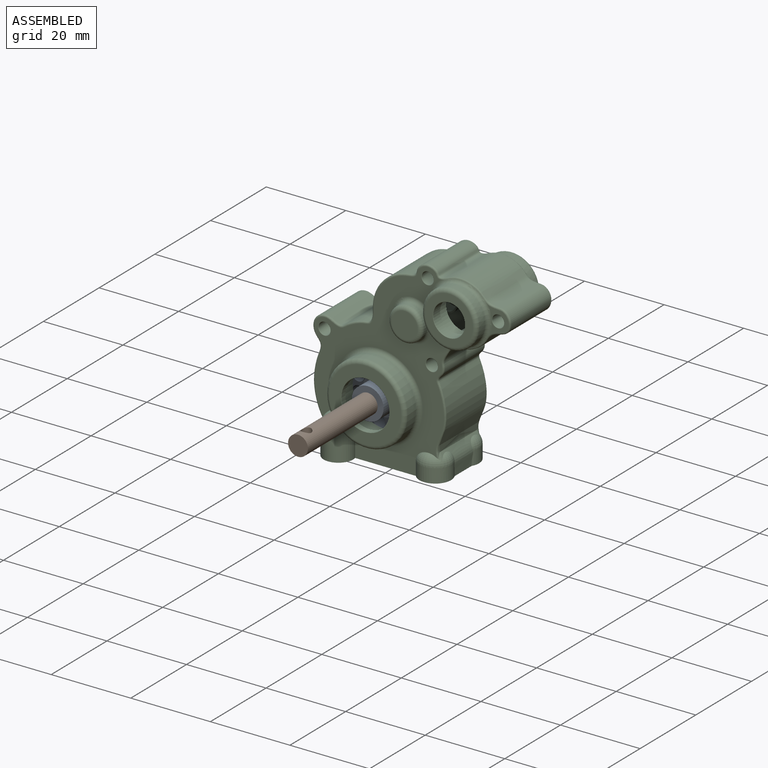
[diagram: assembled view]
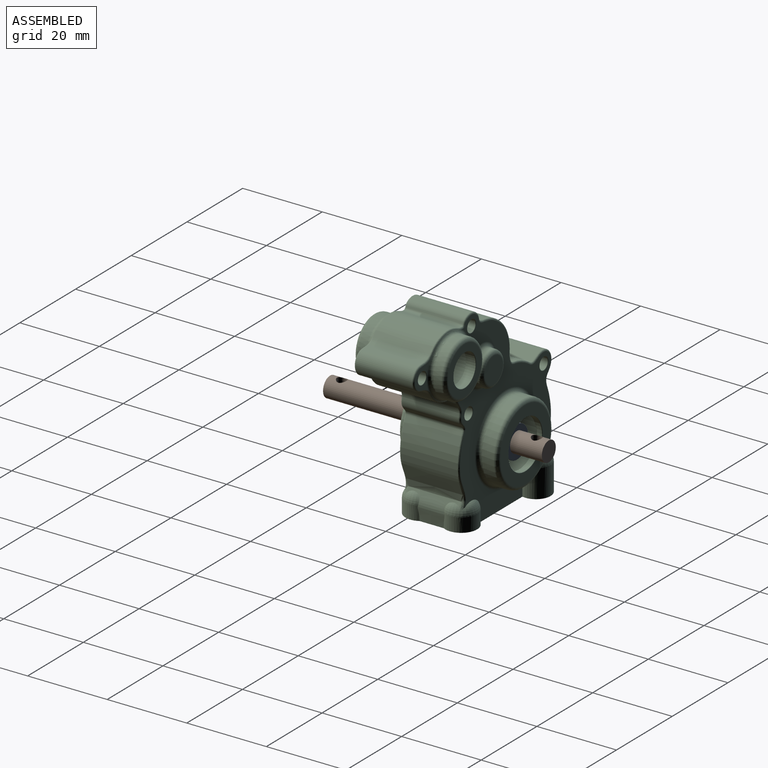
[diagram: assembled view, second angle]
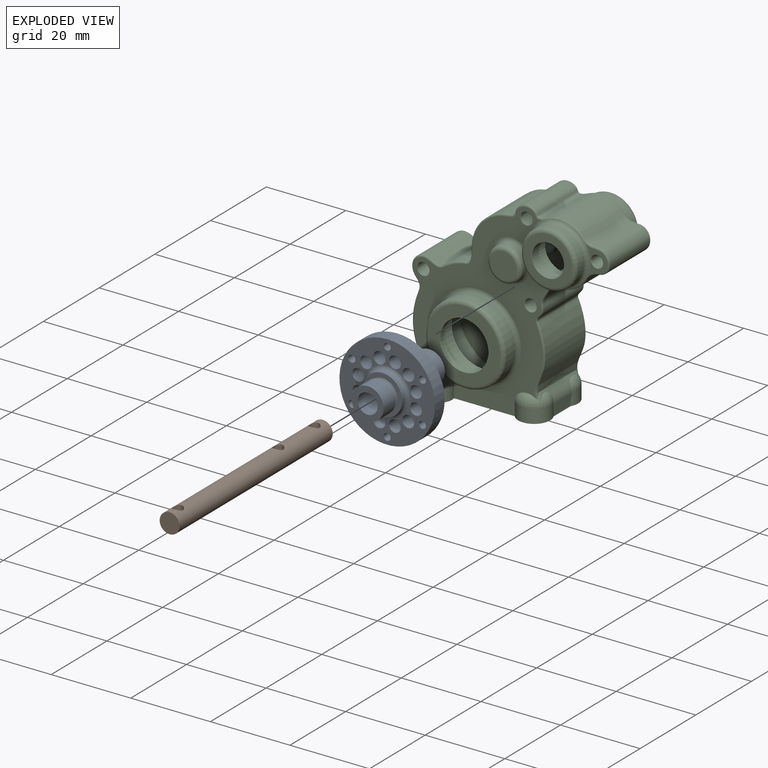
[diagram: exploded view]
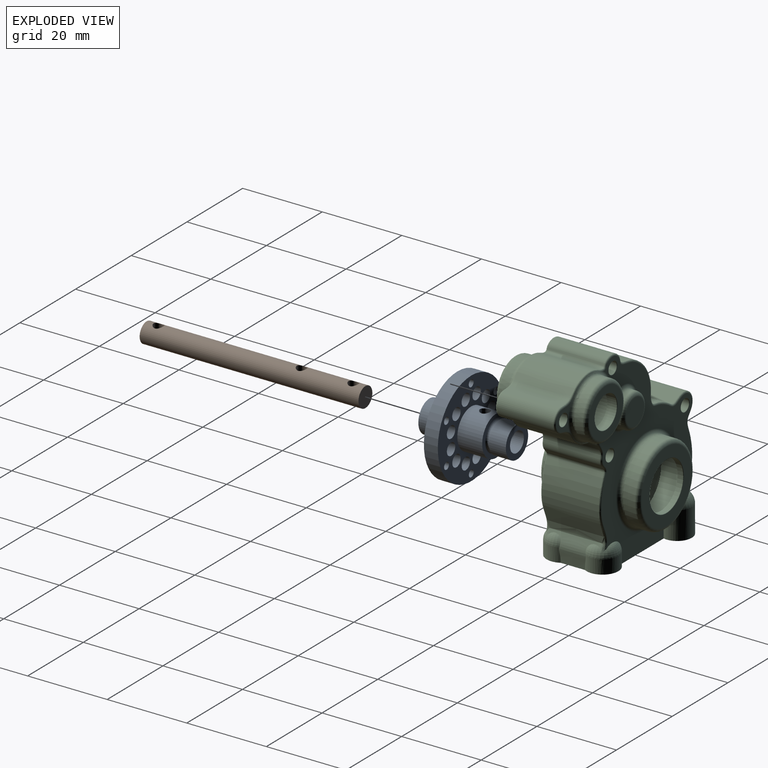
[diagram: exploded view, second angle]
ASSEMBLY  parts=3 mates=4
PART A: 35 faces, bbox 22x24x24 mm
  f0: cylinder r=5mm len=10mm, axis (-1,0,0), area 186.5mm2, adj f8,f9,f15,f16
  f1: cylinder r=2.5mm len=22mm, axis (-1,0,0), area 335.4mm2, adj f12,f13,f15,f16
  f2: torus R=4mm, axis (-1,0,0), area 36.3mm2, adj f3,f14
  f3: plane 10x10mm, normal (1,0,0), area 28.3mm2, adj f2,f4
  f4: cylinder r=5mm len=10mm, axis (-1,0,0), area 23.6mm2, adj f3,f5
  f5: torus R=6mm, axis (-1,0,0), area 52.9mm2, adj f4,f6
  f6: plane 24x24mm, normal (1,0,0), area 240mm2, adj f5,f7,f17,f18,f19,f20,f21,f22
  f7: cylinder r=12mm len=24mm, axis (-1,0,0), area 263.9mm2, adj f6,f8
  f8: plane 24x24mm, normal (-1,0,0), area 274.6mm2, adj f0,f7,f17,f18,f19,f20,f21,f22
  f9: plane 10x10mm, normal (-1,0,0), area 28.3mm2, adj f0,f10
  f10: torus R=4mm, axis (-1,0,0), area 36.3mm2, adj f9,f11
  f11: cylinder r=4mm len=8mm, axis (-1,0,0), area 106.8mm2, adj f10,f12
  f12: plane 8x8mm, normal (-1,0,0), area 30.6mm2, adj f1,f11
  f13: plane 8x8mm, normal (1,0,0), area 30.6mm2, adj f1,f14
  f14: cylinder r=4mm len=8mm, axis (-1,0,0), area 106.8mm2, adj f2,f13
  f15: cylinder r=1.25mm len=2.84mm, axis (0,0,1), area 20.3mm2, adj f0,f1
  f16: cylinder r=1.25mm len=2.84mm, axis (0,0,1), area 20.3mm2, adj f0,f1
  f17: cylinder r=0.88mm len=3.5mm, axis (-1,0,0), area 19.2mm2, adj f6,f8
  f18: cylinder r=0.88mm len=3.5mm, axis (-1,0,0), area 19.2mm2, adj f6,f8
  f19: cylinder r=0.88mm len=3.5mm, axis (-1,0,0), area 19.2mm2, adj f6,f8
  f20: cylinder r=0.88mm len=3.5mm, axis (-1,0,0), area 19.2mm2, adj f6,f8
  f21: cylinder r=0.88mm len=3.5mm, axis (-1,0,0), area 19.2mm2, adj f6,f8
  f22: cylinder r=0.88mm len=3.5mm, axis (-1,0,0), area 19.2mm2, adj f6,f8
  f23: cylinder r=1.5mm len=3.5mm, axis (1,0,0), area 33mm2, adj f6,f8
  f24: cylinder r=1.5mm len=3.5mm, axis (1,0,0), area 33mm2, adj f6,f8
  f25: cylinder r=1.5mm len=3.5mm, axis (1,0,0), area 33mm2, adj f6,f8
  f26: cylinder r=1.5mm len=3.5mm, axis (1,0,0), area 33mm2, adj f6,f8
  f27: cylinder r=1.5mm len=3.5mm, axis (1,0,0), area 33mm2, adj f6,f8
  f28: cylinder r=1.5mm len=3.5mm, axis (1,0,0), area 33mm2, adj f6,f8
  f29: cylinder r=1.5mm len=3.5mm, axis (1,0,0), area 33mm2, adj f6,f8
  f30: cylinder r=1.5mm len=3.5mm, axis (1,0,0), area 33mm2, adj f6,f8
  f31: cylinder r=1.5mm len=3.5mm, axis (1,0,0), area 33mm2, adj f6,f8
  f32: cylinder r=1.5mm len=3.5mm, axis (1,0,0), area 33mm2, adj f6,f8
  f33: cylinder r=1.5mm len=3.5mm, axis (1,0,0), area 33mm2, adj f6,f8
  f34: cylinder r=1.5mm len=3.5mm, axis (1,0,0), area 33mm2, adj f6,f8
PART B: 6 faces, bbox 55x5x5 mm
  f0: cylinder r=2.5mm len=55mm, axis (-1,0,0), area 833.5mm2, adj f1,f2,f3,f4,f5
  f1: plane 5x5mm, normal (1,0,0), area 19.6mm2, adj f0
  f2: plane 5x5mm, normal (-1,0,0), area 19.6mm2, adj f0
  f3: cylinder r=1.25mm len=5mm, axis (0,0,-1), area 36.7mm2, adj f0
  f4: cylinder r=1.25mm len=5mm, axis (0,0,-1), area 36.7mm2, adj f0
  f5: cylinder r=1.25mm len=5mm, axis (0,0,-1), area 36.7mm2, adj f0
PART C: 158 faces, bbox 25x57.6x49.9 mm
  f0: cylinder r=2.5mm len=5mm, axis (-1,0,0), area 48.7mm2, adj f79,f81
  f1: cylinder r=2.88mm len=5.76mm, axis (-1,0,0), area 18.1mm2, adj f62,f79
  f2: cylinder r=5.05mm len=10.1mm, axis (-1,0,0), area 114.2mm2, adj f62,f78
  f3: cylinder r=8.05mm len=16.1mm, axis (-1,0,0), area 278.2mm2, adj f61,f77
  f4: torus R=9mm, axis (1,0,0), area 95.1mm2, adj f11,f49
  f5: torus R=3.25mm, axis (1,0,0), area 38.4mm2, adj f6,f76
  f6: cylinder r=4.25mm len=8.5mm, axis (1,0,0), area 26.7mm2, adj f5,f7
  f7: torus R=5.25mm, axis (-1,0,0), area 44.9mm2, adj f6,f36,f48
  f8: cylinder r=7mm len=14mm, axis (1,0,0), area 88mm2, adj f9,f36
  f9: torus R=6mm, axis (1,0,0), area 65.5mm2, adj f8,f50
  f10: torus R=11mm, axis (1,0,0), area 95.9mm2, adj f11,f12,f13,f48
  f11: cylinder r=10mm len=20mm, axis (-1,0,0), area 183mm2, adj f4,f10,f13
  f12: cylinder r=3.7mm len=7.4mm, axis (0,1,0), area 99.8mm2, adj f10,f13,f48,f60,f66,f71,f80
  f13: torus R=0.7mm, axis (0,1,0), area 37.6mm2, adj f10,f11,f12,f48,f70
  f14: cylinder r=4mm len=7.14mm, axis (0,1,0), area 40.4mm2, adj f15,f48,f60,f65,f68
  f15: torus R=1mm, axis (0,1,0), area 27.6mm2, adj f14,f48,f65,f67,f68,f69
  f16: cylinder r=1.15mm len=4mm, axis (0,-1,0), area 28.9mm2, adj f60,f64
  f17: cylinder r=1.15mm len=6.5mm, axis (0,-1,0), area 47mm2, adj f60,f63
  f18: cylinder r=3mm len=3.7mm, axis (1,0,0), area 14.8mm2, adj f19,f28,f33,f57
  f19: cylinder r=8.2mm len=11.47mm, axis (-1,0,0), area 65.8mm2, adj f18,f20,f31,f57
  f20: cylinder r=3mm len=3.7mm, axis (1,0,0), area 17.9mm2, adj f19,f21,f53,f57
  f21: cylinder r=14.75mm len=29.5mm, axis (-1,0,0), area 299.8mm2, adj f20,f30,f53,f54,f57,f61,f62
  f22: cylinder r=7.5mm len=15mm, axis (-1,0,0), area 51.2mm2, adj f57,f58,f59,f104
  f23: cylinder r=15.67mm len=30.79mm, axis (-1,0,0), area 69.7mm2, adj f24,f57,f60,f105
  f24: cylinder r=2mm len=2.42mm, axis (-1,0,0), area 5.3mm2, adj f23,f25,f57,f106
  f25: cylinder r=9.11mm len=12.5mm, axis (-1,0,0), area 31.7mm2, adj f24,f57,f58,f107
  f26: cylinder r=2mm len=1.6mm, axis (-1,0,0), area 0.9mm2, adj f27,f46,f57,f108
  f27: cylinder r=15.67mm len=24.55mm, axis (-1,0,0), area 49.5mm2, adj f26,f57,f60,f109
  f28: cylinder r=6.22mm len=12.45mm, axis (-1,0,0), area 97.5mm2, adj f18,f29,f34,f57
  f29: cylinder r=3mm len=3.7mm, axis (-1,0,0), area 14.8mm2, adj f28,f32,f55,f57
  f30: cylinder r=3mm len=4.25mm, axis (-1,0,0), area 17.9mm2, adj f21,f54,f55,f57
  f31: torus R=8.1mm, axis (1,0,0), area 2.8mm2, adj f19,f33,f53,f62
  f32: torus R=3.1mm, axis (1,0,0), area 0.6mm2, adj f29,f34,f52,f62
  f33: torus R=3.1mm, axis (1,0,0), area 0.6mm2, adj f18,f31,f34,f62
  f34: torus R=6.12mm, axis (1,0,0), area 4.1mm2, adj f28,f32,f33,f62
  f35: cylinder r=1.5mm len=14.8mm, axis (-1,0,0), area 139.5mm2, adj f37,f51,f118,f129
  f36: torus R=8mm, axis (1,0,0), area 65mm2, adj f7,f8,f48,f51,f72,f74,f75
  f37: torus R=1.6mm, axis (-1,0,0), area 1.4mm2, adj f35,f51,f75
  f38: cylinder r=4mm len=8mm, axis (-1,0,0), area 60.3mm2, adj f39,f78
  f39: torus R=4.1mm, axis (1,0,0), area 4mm2, adj f38,f50
  f40: cylinder r=1.5mm len=14.8mm, axis (-1,0,0), area 139.5mm2, adj f41,f121
  f41: torus R=1.6mm, axis (-1,0,0), area 1.5mm2, adj f40,f48
  f42: cylinder r=6.05mm len=12.1mm, axis (-1,0,0), area 53.1mm2, adj f43,f77
  f43: torus R=6.15mm, axis (1,0,0), area 6mm2, adj f42,f49
  f44: cylinder r=1.5mm len=14.8mm, axis (-1,0,0), area 139.5mm2, adj f45,f124
  f45: torus R=1.6mm, axis (-1,0,0), area 1.5mm2, adj f44,f48
  f46: cylinder r=1.5mm len=14.8mm, axis (-1,0,0), area 126.1mm2, adj f26,f47,f56,f57,f108,f125,f134,f135
  f47: torus R=1.6mm, axis (-1,0,0), area 1.5mm2, adj f46,f48
  f48: plane 48.36x34.86mm, normal (-1,0,0), area 552.2mm2, adj f7,f10,f12,f13,f14,f15,f36,f41
  f49: plane 18x18mm, normal (-1,0,0), area 135.6mm2, adj f4,f43
  f50: plane 12x12mm, normal (-1,0,0), area 60.3mm2, adj f9,f39
  f51: bspline ~0.44x0.14mm, area 0.1mm2, adj f35,f36,f37
  f52: torus R=8.1mm, axis (1,0,0), area 0.8mm2, adj f32,f54,f55,f62
  f53: torus R=3.1mm, axis (1,0,0), area 0.7mm2, adj f20,f21,f31,f62
  f54: torus R=3.1mm, axis (1,0,0), area 0.7mm2, adj f21,f30,f52,f62
  f55: cylinder r=8.2mm len=3.71mm, axis (-1,0,0), area 18.2mm2, adj f29,f30,f52,f57
  f56: cylinder r=9.11mm len=3.73mm, axis (-1,0,0), area 7.9mm2, adj f46,f57,f59,f134
  f57: plane 47.48x43.44mm, normal (1,0,0), area 146.1mm2, adj f18,f19,f20,f21,f22,f23,f24,f25
  f58: cylinder r=2mm len=2.36mm, axis (-1,0,0), area 4.2mm2, adj f22,f25,f57,f136
  f59: cylinder r=2mm len=2.18mm, axis (-1,0,0), area 4.2mm2, adj f22,f56,f57,f137
  f60: plane 29.71x24.15mm, normal (0,1,0), area 460.8mm2, adj f12,f14,f16,f17,f23,f27,f48,f57
  f61: plane 29.5x29.5mm, normal (1,0,0), area 479.9mm2, adj f3,f21
  f62: plane 27.84x21.44mm, normal (1,0,0), area 215.2mm2, adj f1,f2,f21,f31,f32,f33,f34,f52
  f63: plane 2.3x2.3mm, normal (0,1,0), area 4.2mm2, adj f17
  f64: plane 2.3x2.3mm, normal (0,1,0), area 4.2mm2, adj f16
  f65: bspline ~9.9x8.95mm, area 24.8mm2, adj f14,f15,f60,f69,f80,f142
  f66: plane 12.51x4.29mm, normal (0,0,-1), area 53.6mm2, adj f12,f60,f80,f94,f156
  f67: bspline ~26.81x4.36mm, area 17.7mm2, adj f15,f48,f69,f74,f80
  f68: bspline ~2.15x1.11mm, area 0.5mm2, adj f14,f15
  f69: bspline ~4.25x2.99mm, area 1.1mm2, adj f15,f65,f67,f80
  f70: plane 1.4x1.4mm, normal (0,-1,0), area 1.5mm2, adj f13
  f71: bspline ~44.75x32.31mm, area 43.4mm2, adj f12,f48,f72,f80
  f72: bspline ~12x4.1mm, area 6.8mm2, adj f36,f71,f73,f80
  f73: bspline ~7.29x5.68mm, area 8.6mm2, adj f72,f74,f75,f80
  f74: bspline ~10.42x5.9mm, area 5.8mm2, adj f36,f67,f73,f80
  f75: plane 6.6x5.25mm, normal (-1,0,0), area 13.2mm2, adj f36,f37,f73
  f76: plane 6.5x6.5mm, normal (-1,0,0), area 33.2mm2, adj f5
  f77: plane 16.1x16.1mm, normal (1,0,0), area 88.6mm2, adj f3,f42
  f78: plane 10.1x10.1mm, normal (1,0,0), area 29.9mm2, adj f2,f38
  f79: plane 5.76x5.76mm, normal (1,0,0), area 6.4mm2, adj f0,f1
  f80: bspline ~57.13x49.94mm, area 971.3mm2, adj f12,f65,f66,f67,f69,f71,f72,f73
  f81: plane 5x5mm, normal (1,0,0), area 19.6mm2, adj f0
  f82: cylinder r=2.5mm len=5mm, axis (1,0,0), area 48.7mm2, adj f155,f157
  f83: cylinder r=2.88mm len=5.76mm, axis (1,0,0), area 18.1mm2, adj f139,f155
  f84: cylinder r=5.05mm len=10.1mm, axis (1,0,0), area 114.2mm2, adj f139,f154
  f85: cylinder r=8.05mm len=16.1mm, axis (1,0,0), area 278.2mm2, adj f138,f153
  f86: torus R=9mm, axis (-1,0,0), area 95.1mm2, adj f93,f127
  f87: torus R=3.25mm, axis (-1,0,0), area 38.4mm2, adj f88,f152
  f88: cylinder r=4.25mm len=8.5mm, axis (-1,0,0), area 26.7mm2, adj f87,f89
  f89: torus R=5.25mm, axis (1,0,0), area 44.9mm2, adj f88,f117,f126
  f90: cylinder r=7mm len=14mm, axis (-1,0,0), area 88mm2, adj f91,f117
  f91: torus R=6mm, axis (-1,0,0), area 65.5mm2, adj f90,f128
  f92: torus R=11mm, axis (-1,0,0), area 95.9mm2, adj f93,f94,f95,f126
  f93: cylinder r=10mm len=20mm, axis (1,0,0), area 183.1mm2, adj f86,f92,f95
  f94: cylinder r=3.7mm len=7.4mm, axis (0,1,0), area 99.8mm2, adj f60,f66,f92,f95,f126,f147,f156
  f95: torus R=0.7mm, axis (0,1,0), area 37.6mm2, adj f92,f93,f94,f126,f146
  f96: cylinder r=4mm len=7.14mm, axis (0,1,0), area 40.4mm2, adj f60,f97,f126,f142,f144
  f97: torus R=1mm, axis (0,1,0), area 27.6mm2, adj f96,f126,f142,f143,f144,f145
  f98: cylinder r=1.15mm len=4mm, axis (0,-1,0), area 28.9mm2, adj f60,f141
  f99: cylinder r=1.15mm len=6.5mm, axis (0,-1,0), area 47mm2, adj f60,f140
  f100: cylinder r=3mm len=3.7mm, axis (-1,0,0), area 14.8mm2, adj f101,f110,f115,f135
  f101: cylinder r=8.2mm len=11.47mm, axis (1,0,0), area 65.8mm2, adj f100,f102,f113,f135
  f102: cylinder r=3mm len=3.7mm, axis (-1,0,0), area 17.9mm2, adj f101,f103,f131,f135
  f103: cylinder r=14.75mm len=29.5mm, axis (1,0,0), area 299.8mm2, adj f102,f112,f131,f132,f135,f138,f139
  f104: cylinder r=7.5mm len=15mm, axis (1,0,0), area 51.2mm2, adj f22,f135,f136,f137
  f105: cylinder r=15.67mm len=30.79mm, axis (1,0,0), area 69.7mm2, adj f23,f60,f106,f135
  f106: cylinder r=2mm len=2.42mm, axis (1,0,0), area 5.3mm2, adj f24,f105,f107,f135
  f107: cylinder r=9.11mm len=12.5mm, axis (1,0,0), area 31.7mm2, adj f25,f106,f135,f136
  f108: cylinder r=2mm len=1.6mm, axis (1,0,0), area 0.9mm2, adj f26,f46,f109,f135
  f109: cylinder r=15.67mm len=24.55mm, axis (1,0,0), area 49.5mm2, adj f27,f60,f108,f135
  f110: cylinder r=6.22mm len=12.45mm, axis (1,0,0), area 97.5mm2, adj f100,f111,f116,f135
  f111: cylinder r=3mm len=3.7mm, axis (1,0,0), area 14.8mm2, adj f110,f114,f133,f135
  f112: cylinder r=3mm len=4.25mm, axis (1,0,0), area 17.9mm2, adj f103,f132,f133,f135
  f113: torus R=8.1mm, axis (-1,0,0), area 2.8mm2, adj f101,f115,f131,f139
  f114: torus R=3.1mm, axis (-1,0,0), area 0.6mm2, adj f111,f116,f130,f139
  f115: torus R=3.1mm, axis (-1,0,0), area 0.6mm2, adj f100,f113,f116,f139
  f116: torus R=6.12mm, axis (-1,0,0), area 4.1mm2, adj f110,f114,f115,f139
  f117: torus R=8mm, axis (-1,0,0), area 65mm2, adj f89,f90,f126,f129,f148,f150,f151
  f118: torus R=1.6mm, axis (1,0,0), area 1.4mm2, adj f35,f129,f151
  f119: cylinder r=4mm len=8mm, axis (1,0,0), area 60.3mm2, adj f120,f154
  f120: torus R=4.1mm, axis (-1,0,0), area 4mm2, adj f119,f128
  f121: torus R=1.6mm, axis (1,0,0), area 1.5mm2, adj f40,f126
  f122: cylinder r=6.05mm len=12.1mm, axis (1,0,0), area 53.1mm2, adj f123,f153
  f123: torus R=6.15mm, axis (-1,0,0), area 6mm2, adj f122,f127
  f124: torus R=1.6mm, axis (1,0,0), area 1.5mm2, adj f44,f126
  f125: torus R=1.6mm, axis (1,0,0), area 1.5mm2, adj f46,f126
  f126: plane 48.36x34.86mm, normal (1,0,0), area 552.2mm2, adj f60,f89,f92,f94,f95,f96,f97,f117
  f127: plane 18x18mm, normal (1,0,0), area 135.6mm2, adj f86,f123
  f128: plane 12x12mm, normal (1,0,0), area 60.3mm2, adj f91,f120
  f129: bspline ~0.44x0.14mm, area 0.1mm2, adj f35,f117,f118
  f130: torus R=8.1mm, axis (-1,0,0), area 0.8mm2, adj f114,f132,f133,f139
  f131: torus R=3.1mm, axis (-1,0,0), area 0.7mm2, adj f102,f103,f113,f139
  f132: torus R=3.1mm, axis (-1,0,0), area 0.7mm2, adj f103,f112,f130,f139
  f133: cylinder r=8.2mm len=3.71mm, axis (1,0,0), area 18.2mm2, adj f111,f112,f130,f135
  f134: cylinder r=9.11mm len=3.73mm, axis (1,0,0), area 7.9mm2, adj f46,f56,f135,f137
  f135: plane 47.48x43.44mm, normal (-1,0,0), area 146.1mm2, adj f46,f60,f100,f101,f102,f103,f104,f105
  f136: cylinder r=2mm len=2.36mm, axis (1,0,0), area 4.2mm2, adj f58,f104,f107,f135
  f137: cylinder r=2mm len=2.18mm, axis (1,0,0), area 4.2mm2, adj f59,f104,f134,f135
  f138: plane 29.5x29.5mm, normal (-1,0,0), area 479.9mm2, adj f85,f103
  f139: plane 27.84x21.44mm, normal (-1,0,0), area 215.2mm2, adj f83,f84,f103,f113,f114,f115,f116,f130
  f140: plane 2.3x2.3mm, normal (0,1,0), area 4.2mm2, adj f99
  f141: plane 2.3x2.3mm, normal (0,1,0), area 4.2mm2, adj f98
  f142: bspline ~9.9x8.95mm, area 24.8mm2, adj f60,f65,f96,f97,f145,f156
  f143: bspline ~26.81x4.36mm, area 17.7mm2, adj f97,f126,f145,f150,f156
  f144: bspline ~2.15x1.11mm, area 0.5mm2, adj f96,f97
  f145: bspline ~4.25x2.99mm, area 1.1mm2, adj f97,f142,f143,f156
  f146: plane 1.4x1.4mm, normal (0,-1,0), area 1.5mm2, adj f95
  f147: bspline ~44.75x32.31mm, area 43.4mm2, adj f94,f126,f148,f156
  f148: bspline ~12x4.1mm, area 6.8mm2, adj f117,f147,f149,f156
  f149: bspline ~7.29x5.68mm, area 8.6mm2, adj f148,f150,f151,f156
  f150: bspline ~9.6x5.43mm, area 5.8mm2, adj f117,f143,f149,f156
  f151: plane 6.6x5.25mm, normal (1,0,0), area 13.2mm2, adj f117,f118,f149
  f152: plane 6.5x6.5mm, normal (1,0,0), area 33.2mm2, adj f87
  f153: plane 16.1x16.1mm, normal (-1,0,0), area 88.6mm2, adj f85,f122
  f154: plane 10.1x10.1mm, normal (-1,0,0), area 29.9mm2, adj f84,f119
  f155: plane 5.76x5.76mm, normal (-1,0,0), area 6.4mm2, adj f82,f83
  f156: bspline ~57.13x49.94mm, area 969.9mm2, adj f66,f80,f94,f142,f143,f145,f147,f148
  f157: plane 5x5mm, normal (-1,0,0), area 19.6mm2, adj f82
PLACE A rot(axis=(0,0,-1),90deg) t=(-1.59,25.87,15.51)mm
PLACE B rot(axis=(0.71,-0.71,0),179.9deg) t=(-1.59,25.87,15.51)mm
PLACE C rot(axis=(-0.58,0.58,-0.58),120deg) t=(285.75,41.81,96.79)mm
MATE cylindrical B.f0 <-> A.f0  axis (0,1,0) through (-1.59,-1.63,15.51)mm
MATE parallel A.f0 <-> C.f3  axis (0,-1,0) through (-1.59,1.12,15.51)mm
MATE revolute A.f0 <-> C.f3  axis (0,1,0) through (-1.59,15.75,15.51)mm
MATE cylindrical B.f4 <-> A.f15  axis (0,0,1) through (-1.58,9.87,18.04)mm
